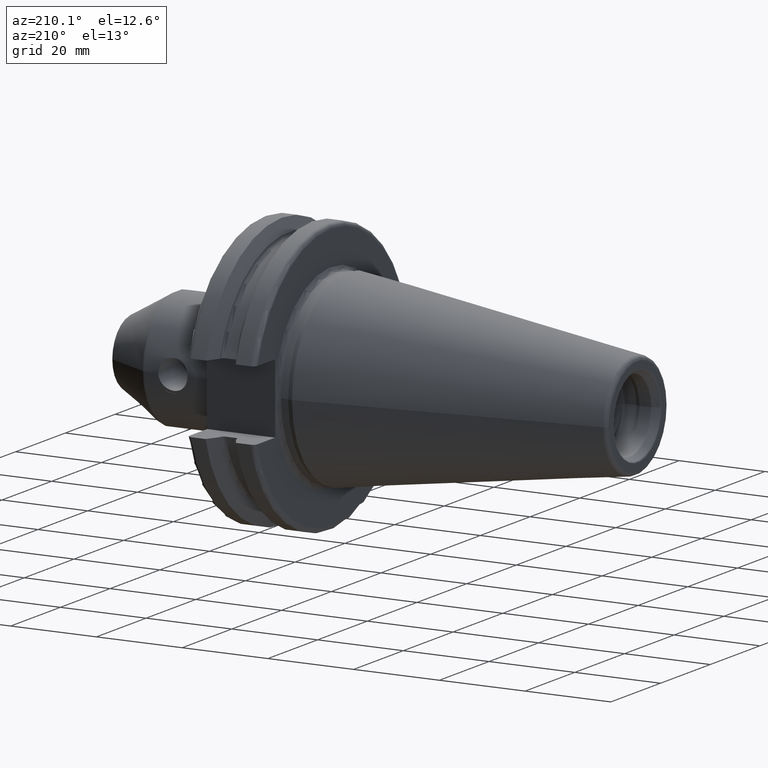
[diagram: clean part render]
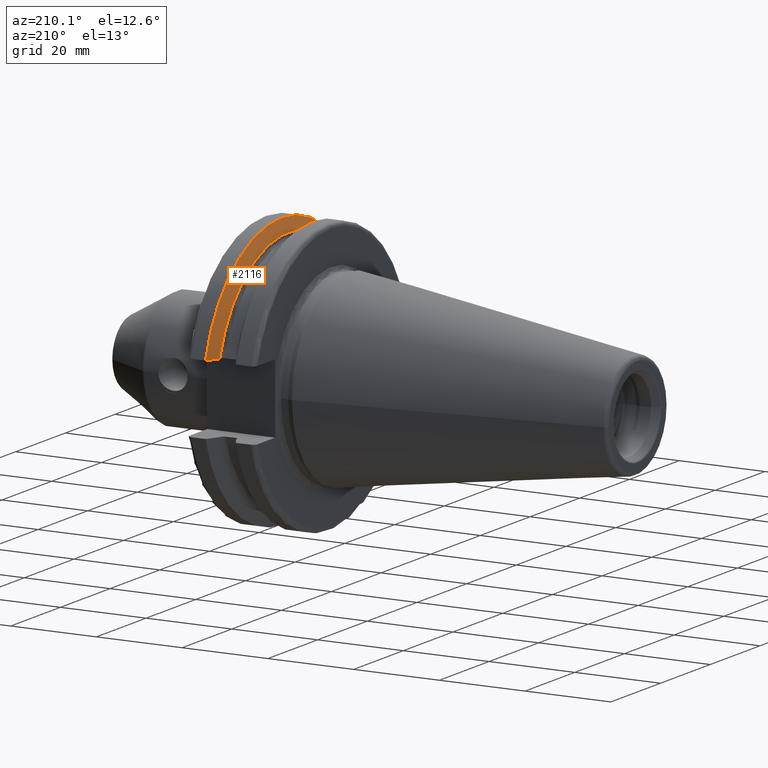
[diagram: same view with one face highlighted and labeled with its STEP entity id]
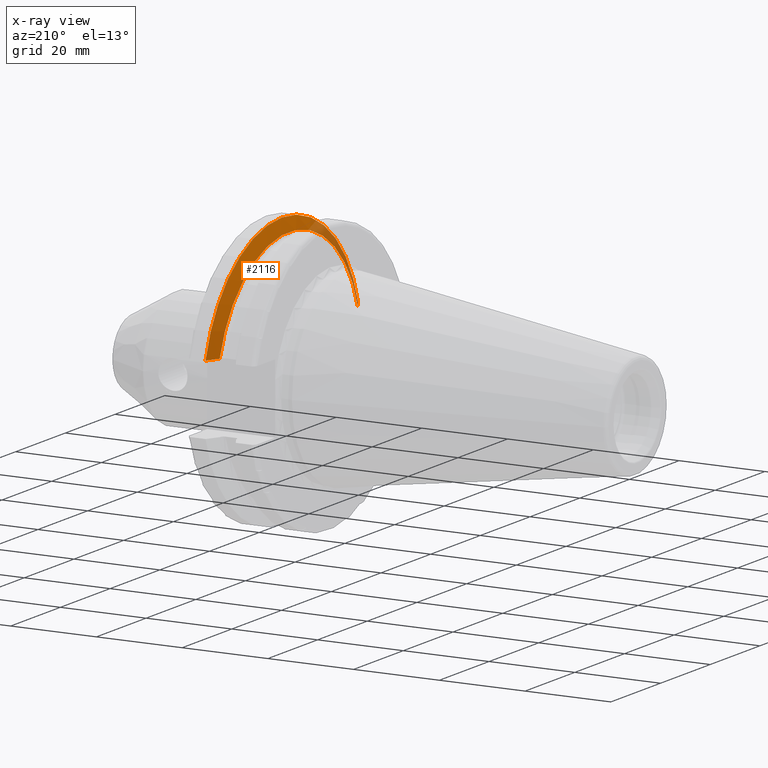
[diagram: x-ray of the same camera — body ghosted, the highlighted face saturated]
A machine part, auxiliary view. The second image highlights one B-rep face of the part: STEP entity #2116.
The next image is the same camera in x-ray: the body ghosted, the highlighted face saturated — about 14% of this face is hidden behind the body in this view.
In plain terms, the highlighted conical surface has half-angle 60 deg.
Its self-contained STEP definition (entity closure, byte-faithful):
#393=CARTESIAN_POINT('',(1.470405352042E1,3.071231684927E1,8.1E0));
#394=CARTESIAN_POINT('',(1.451824513517E1,3.037948258059E1,8.1E0));
#395=CARTESIAN_POINT('',(1.415074718503E1,2.972048825911E1,8.1E0));
#396=CARTESIAN_POINT('',(1.361195207986E1,2.875212438619E1,8.1E0));
#397=CARTESIAN_POINT('',(1.326094199325E1,2.811971443922E1,8.1E0));
#398=CARTESIAN_POINT('',(1.30875E1,2.780681820245E1,8.1E0));
#400=CARTESIAN_POINT('',(1.30875E1,-2.780681820245E1,8.1E0));
#401=CARTESIAN_POINT('',(1.326086175289E1,-2.811956968242E1,8.1E0));
#402=CARTESIAN_POINT('',(1.361176448515E1,-2.875178670793E1,8.1E0));
#403=CARTESIAN_POINT('',(1.415055493375E1,-2.972014324708E1,8.1E0));
#404=CARTESIAN_POINT('',(1.451816260441E1,-3.037933474515E1,8.1E0));
#405=CARTESIAN_POINT('',(1.470405352042E1,-3.071231684927E1,8.1E0));
#407=CARTESIAN_POINT('',(1.30875E1,0.E0,0.E0));
#408=DIRECTION('',(1.E0,0.E0,0.E0));
#409=DIRECTION('',(0.E0,9.600957415706E-1,2.796715341576E-1));
#410=AXIS2_PLACEMENT_3D('',#407,#408,#409);
#438=CARTESIAN_POINT('',(1.470405352042E1,0.E0,0.E0));
#439=DIRECTION('',(1.E0,0.E0,0.E0));
#440=DIRECTION('',(0.E0,9.669363825036E-1,2.550177095632E-1));
#441=AXIS2_PLACEMENT_3D('',#438,#439,#440);
#1434=CARTESIAN_POINT('',(1.30875E1,2.780681820245E1,8.1E0));
#1435=VERTEX_POINT('',#1434);
#1444=CARTESIAN_POINT('',(1.30875E1,-2.780681820245E1,8.1E0));
#1445=VERTEX_POINT('',#1444);
#1454=VERTEX_POINT('',#393);
#1455=VERTEX_POINT('',#405);
#2104=CARTESIAN_POINT('',(1.389577676021E1,0.E0,0.E0));
#2105=DIRECTION('',(1.E0,0.E0,0.E0));
#2106=DIRECTION('',(0.E0,-1.E0,0.E0));
#2107=AXIS2_PLACEMENT_3D('',#2104,#2105,#2106);
#2108=CONICAL_SURFACE('',#2107,3.036252358474E1,6.E1);
#2109=ORIENTED_EDGE('',*,*,#1962,.F.);
#2111=ORIENTED_EDGE('',*,*,#2110,.T.);
#2112=ORIENTED_EDGE('',*,*,#2003,.F.);
#2113=ORIENTED_EDGE('',*,*,#2067,.F.);
#2114=EDGE_LOOP('',(#2109,#2111,#2112,#2113));
#2115=FACE_OUTER_BOUND('',#2114,.F.);
#2116=ADVANCED_FACE('',(#2115),#2108,.T.);
#399=B_SPLINE_CURVE_WITH_KNOTS('',3,(#393,#394,#395,#396,#397,#398),
.UNSPECIFIED.,.F.,.F.,(4,1,1,4),(0.E0,3.333333333333E-1,6.666666666667E-1,1.E0),
.UNSPECIFIED.);
#406=B_SPLINE_CURVE_WITH_KNOTS('',3,(#400,#401,#402,#403,#404,#405),
.UNSPECIFIED.,.F.,.F.,(4,1,1,4),(0.E0,3.333333333333E-1,6.666666666667E-1,1.E0),
.UNSPECIFIED.);
#411=CIRCLE('',#410,2.896254716948E1);
#442=CIRCLE('',#441,3.17625E1);
#1962=EDGE_CURVE('',#1454,#1435,#399,.T.);
#2003=EDGE_CURVE('',#1445,#1455,#406,.T.);
#2067=EDGE_CURVE('',#1435,#1445,#411,.T.);
#2110=EDGE_CURVE('',#1454,#1455,#442,.T.);